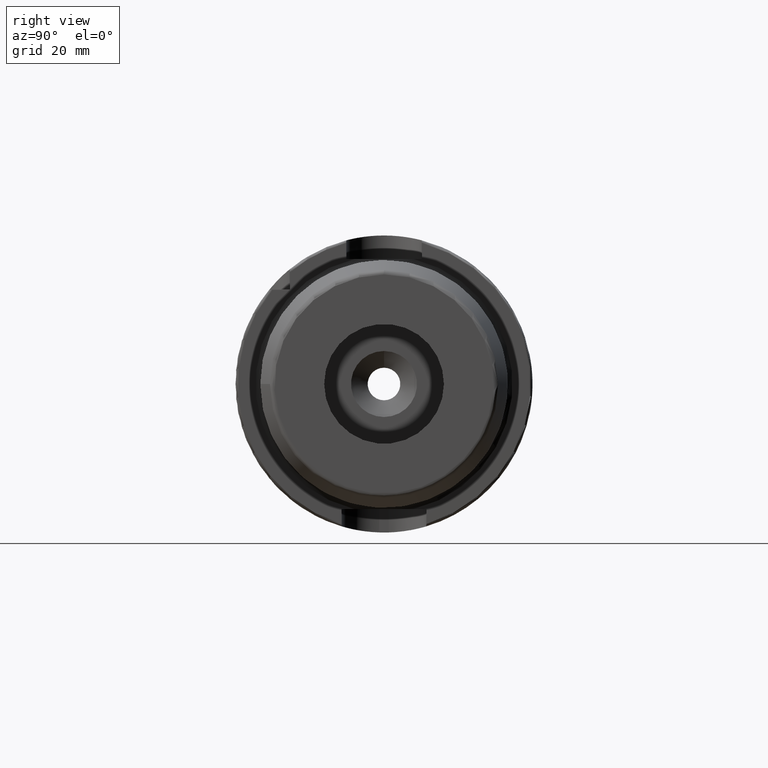
[diagram: clean part render]
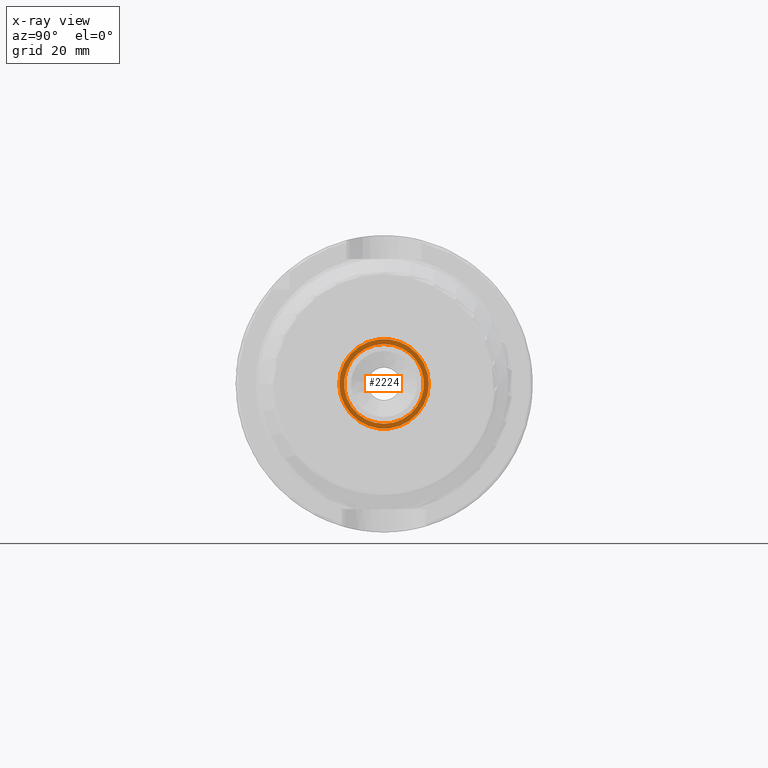
[diagram: x-ray — body ghosted, one internal face saturated and labeled with its STEP entity id]
A machine part, right view, then the same camera in x-ray: the body is ghosted and one INTERNAL B-rep face — a face not visible from any outside direction — is saturated and labeled: STEP entity #2224.
In plain terms, the highlighted planar face has unit normal (-1, 0, 0).
Its self-contained STEP definition (entity closure, byte-faithful):
#106=FACE_BOUND('',#435,.T.);
#147=PLANE('',#2501);
#302=FACE_OUTER_BOUND('',#434,.T.);
#434=EDGE_LOOP('',(#1987));
#435=EDGE_LOOP('',(#1988));
#805=CIRCLE('',#2500,8.458734);
#806=CIRCLE('',#2502,9.5);
#1038=VERTEX_POINT('',#4681);
#1039=VERTEX_POINT('',#4685);
#1364=EDGE_CURVE('',#1038,#1038,#805,.T.);
#1365=EDGE_CURVE('',#1039,#1039,#806,.T.);
#1987=ORIENTED_EDGE('',*,*,#1365,.F.);
#1988=ORIENTED_EDGE('',*,*,#1364,.T.);
#2224=ADVANCED_FACE('',(#302,#106),#147,.F.);
#2500=AXIS2_PLACEMENT_3D('',#4683,#3118,#3119);
#2501=AXIS2_PLACEMENT_3D('',#4684,#3120,#3121);
#2502=AXIS2_PLACEMENT_3D('',#4686,#3122,#3123);
#3118=DIRECTION('center_axis',(-1.,0.,0.));
#3119=DIRECTION('ref_axis',(0.,0.,1.));
#3120=DIRECTION('center_axis',(-1.,0.,0.));
#3121=DIRECTION('ref_axis',(0.,0.,1.));
#3122=DIRECTION('center_axis',(-1.,0.,0.));
#3123=DIRECTION('ref_axis',(0.,0.,1.));
#4681=CARTESIAN_POINT('',(17.,-1.03589615179389E-15,-8.458734));
#4683=CARTESIAN_POINT('Origin',(17.,0.,0.));
#4684=CARTESIAN_POINT('Origin',(17.,7.5,0.));
#4685=CARTESIAN_POINT('',(17.,-9.5,1.16341445918999E-15));
#4686=CARTESIAN_POINT('Origin',(17.,0.,0.));